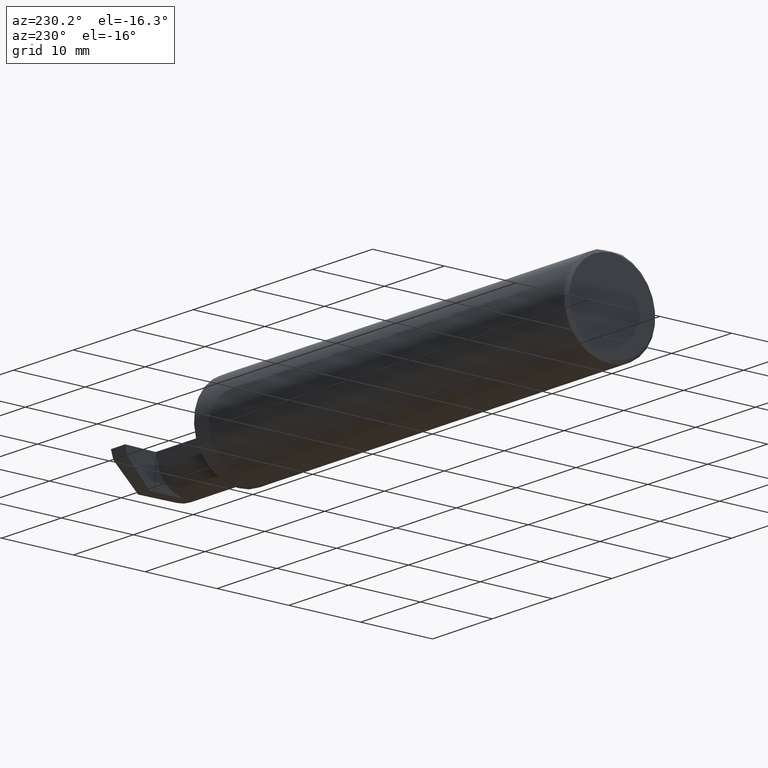
[diagram: clean part render]
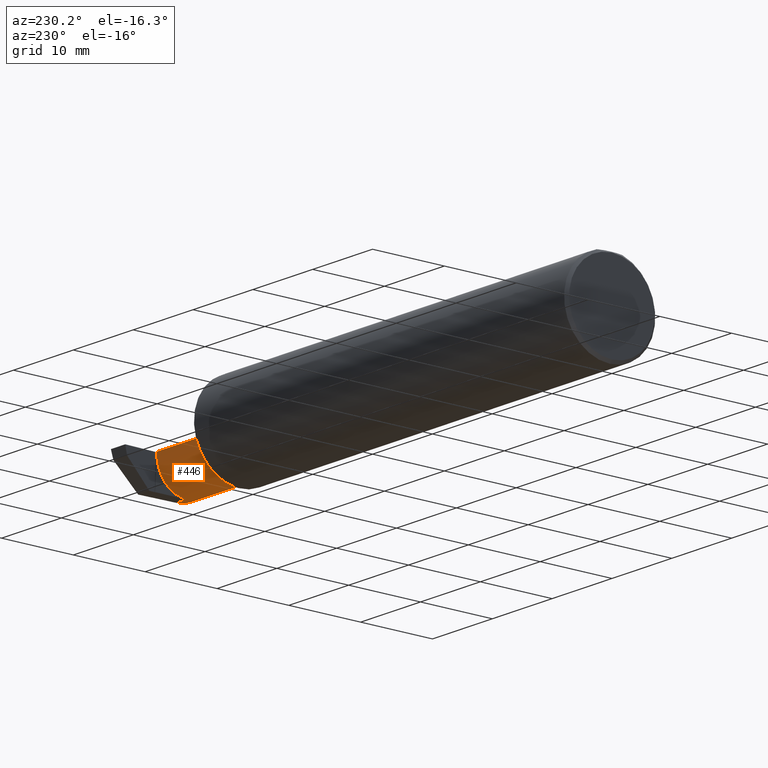
[diagram: same view with one face highlighted and labeled with its STEP entity id]
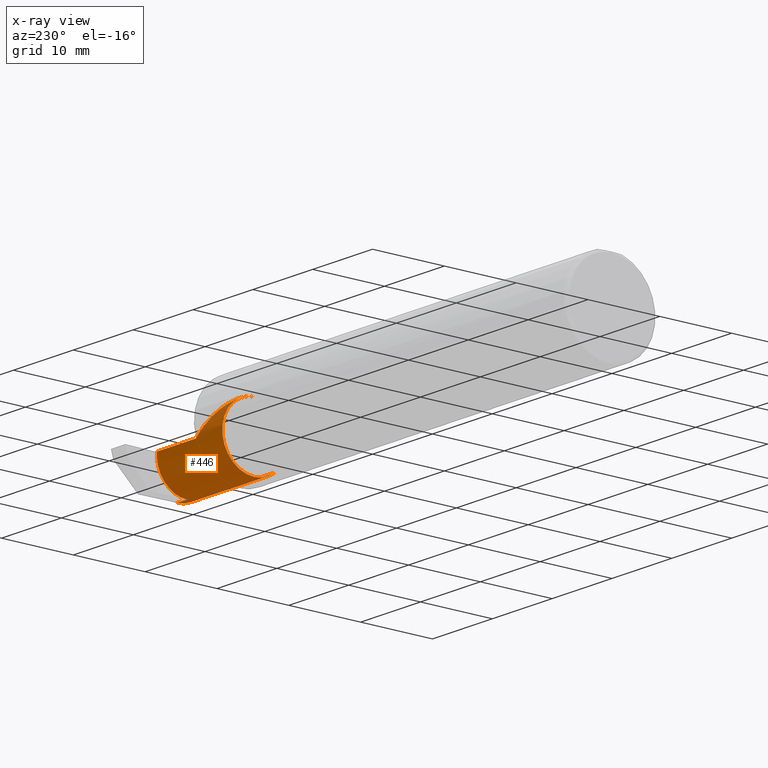
[diagram: x-ray of the same camera — body ghosted, the highlighted face saturated]
A machine part, auxiliary view. The second image highlights one B-rep face of the part: STEP entity #446.
The next image is the same camera in x-ray: the body ghosted, the highlighted face saturated — about 4% of this face is hidden behind the body in this view.
In plain terms, the highlighted cylindrical surface (partial cylindrical patch) has radius 4.445 mm, axis along (-1, -0, -0).
Its self-contained STEP definition (entity closure, byte-faithful):
#31 = CARTESIAN_POINT ( 'NONE',  ( 2.475000000000000089, -0.2080850024789291375, -0.1382955322609665805 ) ) ;
#34 =( BOUNDED_CURVE ( )  B_SPLINE_CURVE ( 3, ( #483, #363, #225, #432 ),
 .UNSPECIFIED., .F., .T. ) 
 B_SPLINE_CURVE_WITH_KNOTS ( ( 4, 4 ),
 ( 4.443983221546778495, 4.709965478757016655 ),
 .UNSPECIFIED. ) 
 CURVE ( )  GEOMETRIC_REPRESENTATION_ITEM ( )  RATIONAL_B_SPLINE_CURVE ( ( 1.000000000000000000, 0.9941131374841131185, 0.9941131374841131185, 1.000000000000000000 ) ) 
 REPRESENTATION_ITEM ( '' )  );
#41 = VERTEX_POINT ( 'NONE', #406 ) ;
#50 = CARTESIAN_POINT ( 'NONE',  ( 2.450000000000000178, 0.07414999999999997982, 6.735557395310432655E-17 ) ) ;
#55 = CARTESIAN_POINT ( 'NONE',  ( 2.981893741990786495, -0.1400387324517231025, -0.1750000000000000167 ) ) ;
#60 = AXIS2_PLACEMENT_3D ( 'NONE', #457, #411, #579 ) ;
#91 = CARTESIAN_POINT ( 'NONE',  ( 2.650000000000000355, 0.07414999999999997982, 4.286263797015727350E-17 ) ) ;
#111 = DIRECTION ( 'NONE',  ( 0.000000000000000000, 0.000000000000000000, 1.000000000000000000 ) ) ;
#113 = VERTEX_POINT ( 'NONE', #464 ) ;
#114 = DIRECTION ( 'NONE',  ( 1.000000000000000000, 0.000000000000000000, 0.000000000000000000 ) ) ;
#126 = LINE ( 'NONE', #50, #212 ) ;
#135 = CARTESIAN_POINT ( 'NONE',  ( 2.917029432995152050, -0.1008500000000000091, -0.1749999999999999889 ) ) ;
#138 = DIRECTION ( 'NONE',  ( -1.000000000000000000, -0.000000000000000000, -0.000000000000000000 ) ) ;
#148 = ORIENTED_EDGE ( 'NONE', *, *, #414, .T. ) ;
#153 = ORIENTED_EDGE ( 'NONE', *, *, #762, .F. ) ;
#161 = DIRECTION ( 'NONE',  ( -1.000000000000000000, -0.000000000000000000, -0.000000000000000000 ) ) ;
#194 = CARTESIAN_POINT ( 'NONE',  ( 2.650000000000000355, 0.07414999999999997982, 4.286263797015727350E-17 ) ) ;
#207 = CARTESIAN_POINT ( 'NONE',  ( 2.906000000000000139, -0.1008499999999999674, 0.000000000000000000 ) ) ;
#208 = AXIS2_PLACEMENT_3D ( 'NONE', #207, #138, #590 ) ;
#210 = ORIENTED_EDGE ( 'NONE', *, *, #675, .F. ) ;
#212 = VECTOR ( 'NONE', #114, 39.37007874015748143 ) ;
#219 = EDGE_LOOP ( 'NONE', ( #369, #641, #210, #396, #477, #683, #148, #662, #751, #153 ) ) ;
#225 = CARTESIAN_POINT ( 'NONE',  ( 2.906689495973013404, 0.07413112468343002748, -0.01577237022675150729 ) ) ;
#230 = VERTEX_POINT ( 'NONE', #31 ) ;
#245 = DIRECTION ( 'NONE',  ( 0.000000000000000000, 0.000000000000000000, 1.000000000000000000 ) ) ;
#261 = CARTESIAN_POINT ( 'NONE',  ( 2.913564601548836563, 0.04629714416892562884, -0.1252712066320194051 ) ) ;
#265 = CARTESIAN_POINT ( 'NONE',  ( 2.917036419112081891, -0.01887343476265498227, -0.1750000000000000444 ) ) ;
#267 = EDGE_CURVE ( 'NONE', #41, #230, #485, .T. ) ;
#292 = CARTESIAN_POINT ( 'NONE',  ( 2.690500000000000114, -0.2080850024789291652, -0.1382955322609665250 ) ) ;
#293 = VERTEX_POINT ( 'NONE', #573 ) ;
#294 = EDGE_CURVE ( 'NONE', #41, #293, #354, .T. ) ;
#312 = DIRECTION ( 'NONE',  ( -1.000000000000000000, -0.000000000000000000, -0.000000000000000000 ) ) ;
#335 = AXIS2_PLACEMENT_3D ( 'NONE', #610, #161, #111 ) ;
#346 = CIRCLE ( 'NONE', #208, 0.1749999999999999889 ) ;
#348 = VERTEX_POINT ( 'NONE', #442 ) ;
#352 = VERTEX_POINT ( 'NONE', #693 ) ;
#354 =( BOUNDED_CURVE ( )  B_SPLINE_CURVE ( 3, ( #696, #445, #55, #823 ),
 .UNSPECIFIED., .F., .T. ) 
 B_SPLINE_CURVE_WITH_KNOTS ( ( 4, 4 ),
 ( 0.2675252011803429530, 0.9270880441442505004 ),
 .UNSPECIFIED. ) 
 CURVE ( )  GEOMETRIC_REPRESENTATION_ITEM ( )  RATIONAL_B_SPLINE_CURVE ( ( 1.000000000000000000, 0.9640754331822828371, 0.9640754331822828371, 1.000000000000000000 ) ) 
 REPRESENTATION_ITEM ( '' )  );
#363 = CARTESIAN_POINT ( 'NONE',  ( 2.907372681961405636, 0.07204909126152565790, -0.03119400421533637113 ) ) ;
#369 = ORIENTED_EDGE ( 'NONE', *, *, #294, .F. ) ;
#374 = LINE ( 'NONE', #821, #403 ) ;
#378 = CARTESIAN_POINT ( 'NONE',  ( 2.475000000000000977, -0.1008499999999999674, 0.1749999999999999889 ) ) ;
#391 = VERTEX_POINT ( 'NONE', #753 ) ;
#396 = ORIENTED_EDGE ( 'NONE', *, *, #718, .F. ) ;
#403 = VECTOR ( 'NONE', #508, 39.37007874015748143 ) ;
#406 = CARTESIAN_POINT ( 'NONE',  ( 2.980479240051444378, -0.2080850024789291652, -0.1382955322609665250 ) ) ;
#411 = DIRECTION ( 'NONE',  ( -1.000000000000000000, -0.000000000000000000, -0.000000000000000000 ) ) ;
#414 = EDGE_CURVE ( 'NONE', #348, #391, #346, .T. ) ;
#417 = VERTEX_POINT ( 'NONE', #531 ) ;
#422 = EDGE_CURVE ( 'NONE', #754, #113, #439, .T. ) ;
#432 = CARTESIAN_POINT ( 'NONE',  ( 2.906000000000000139, 0.07414987299205413884, -0.0002108382441793291845 ) ) ;
#439 =( BOUNDED_CURVE ( )  B_SPLINE_CURVE ( 3, ( #135, #265, #261, #593 ),
 .UNSPECIFIED., .F., .T. ) 
 B_SPLINE_CURVE_WITH_KNOTS ( ( 4, 4 ),
 ( 3.140373936913444908, 4.443983221546777607 ),
 .UNSPECIFIED. ) 
 CURVE ( )  GEOMETRIC_REPRESENTATION_ITEM ( )  RATIONAL_B_SPLINE_CURVE ( ( 1.000000000000000000, 0.8633269052189371795, 0.8633269052189371795, 1.000000000000000000 ) ) 
 REPRESENTATION_ITEM ( '' )  );
#441 = CIRCLE ( 'NONE', #780, 0.1749999999999999889 ) ;
#442 = CARTESIAN_POINT ( 'NONE',  ( 2.906000000000000139, 0.07414999999999999369, 6.735575451811503370E-17 ) ) ;
#445 = CARTESIAN_POINT ( 'NONE',  ( 2.980931506555613453, -0.1771157075472509779, -0.1623092683844330475 ) ) ;
#446 = ADVANCED_FACE ( 'NONE', ( #663 ), #783, .T. ) ;
#457 = CARTESIAN_POINT ( 'NONE',  ( 2.450000000000000178, -0.1008499999999999674, 0.000000000000000000 ) ) ;
#464 = CARTESIAN_POINT ( 'NONE',  ( 2.908037492458067863, 0.06794054266098323303, -0.04620338416404774079 ) ) ;
#477 = ORIENTED_EDGE ( 'NONE', *, *, #785, .T. ) ;
#483 = CARTESIAN_POINT ( 'NONE',  ( 2.908037492458067863, 0.06794054266098323303, -0.04620338416404774079 ) ) ;
#485 = LINE ( 'NONE', #292, #667 ) ;
#508 = DIRECTION ( 'NONE',  ( -1.000000000000000000, -0.000000000000000000, -0.000000000000000000 ) ) ;
#531 = CARTESIAN_POINT ( 'NONE',  ( 2.475000000000000977, -0.1008499999999999674, 0.1749999999999999889 ) ) ;
#546 = CIRCLE ( 'NONE', #335, 0.1749999999999999889 ) ;
#550 =( BOUNDED_CURVE ( )  B_SPLINE_CURVE ( 3, ( #378, #756, #765, #194 ),
 .UNSPECIFIED., .F., .T. ) 
 B_SPLINE_CURVE_WITH_KNOTS ( ( 4, 4 ),
 ( 0.000000000000000000, 1.570796326794896558 ),
 .UNSPECIFIED. ) 
 CURVE ( )  GEOMETRIC_REPRESENTATION_ITEM ( )  RATIONAL_B_SPLINE_CURVE ( ( 1.000000000000000000, 0.8047378541243649375, 0.8047378541243649375, 1.000000000000000000 ) ) 
 REPRESENTATION_ITEM ( '' )  );
#572 = CARTESIAN_POINT ( 'NONE',  ( 2.917029432995152050, -0.1008500000000000091, -0.1749999999999999889 ) ) ;
#573 = CARTESIAN_POINT ( 'NONE',  ( 2.983262242683407006, -0.1008499999999999674, -0.1749999999999999889 ) ) ;
#574 = VERTEX_POINT ( 'NONE', #91 ) ;
#579 = DIRECTION ( 'NONE',  ( 0.000000000000000000, 0.000000000000000000, 1.000000000000000000 ) ) ;
#590 = DIRECTION ( 'NONE',  ( 0.000000000000000000, 0.000000000000000000, 1.000000000000000000 ) ) ;
#593 = CARTESIAN_POINT ( 'NONE',  ( 2.908037492458067863, 0.06794054266098323303, -0.04620338416404774079 ) ) ;
#610 = CARTESIAN_POINT ( 'NONE',  ( 2.475000000000000089, -0.1008499999999999674, 0.000000000000000000 ) ) ;
#641 = ORIENTED_EDGE ( 'NONE', *, *, #267, .T. ) ;
#662 = ORIENTED_EDGE ( 'NONE', *, *, #673, .F. ) ;
#663 = FACE_OUTER_BOUND ( 'NONE', #219, .T. ) ;
#667 = VECTOR ( 'NONE', #797, 39.37007874015748143 ) ;
#673 = EDGE_CURVE ( 'NONE', #113, #391, #34, .T. ) ;
#675 = EDGE_CURVE ( 'NONE', #352, #230, #546, .T. ) ;
#683 = ORIENTED_EDGE ( 'NONE', *, *, #757, .T. ) ;
#693 = CARTESIAN_POINT ( 'NONE',  ( 2.475000000000000089, -0.1008499999999999536, -0.1749999999999999889 ) ) ;
#695 = CARTESIAN_POINT ( 'NONE',  ( 2.475000000000000089, -0.1008499999999999674, 0.000000000000000000 ) ) ;
#696 = CARTESIAN_POINT ( 'NONE',  ( 2.980479240051444378, -0.2080850024789291652, -0.1382955322609665250 ) ) ;
#718 = EDGE_CURVE ( 'NONE', #417, #352, #441, .T. ) ;
#751 = ORIENTED_EDGE ( 'NONE', *, *, #422, .F. ) ;
#753 = CARTESIAN_POINT ( 'NONE',  ( 2.906000000000000139, 0.07414987299205413884, -0.0002108382441793291845 ) ) ;
#754 = VERTEX_POINT ( 'NONE', #572 ) ;
#756 = CARTESIAN_POINT ( 'NONE',  ( 2.475000000000001421, 0.001662626584708371512, 0.1749999999999999889 ) ) ;
#757 = EDGE_CURVE ( 'NONE', #574, #348, #126, .T. ) ;
#762 = EDGE_CURVE ( 'NONE', #293, #754, #374, .T. ) ;
#765 = CARTESIAN_POINT ( 'NONE',  ( 2.547487373415292744, 0.07414999999999996594, 0.1025126265847083745 ) ) ;
#780 = AXIS2_PLACEMENT_3D ( 'NONE', #695, #312, #245 ) ;
#783 = CYLINDRICAL_SURFACE ( 'NONE', #60, 0.1749999999999999889 ) ;
#785 = EDGE_CURVE ( 'NONE', #417, #574, #550, .T. ) ;
#797 = DIRECTION ( 'NONE',  ( -1.000000000000000000, -0.000000000000000000, -0.000000000000000000 ) ) ;
#821 = CARTESIAN_POINT ( 'NONE',  ( 3.000000000000000444, -0.1008499999999999813, -0.1749999999999999889 ) ) ;
#823 = CARTESIAN_POINT ( 'NONE',  ( 2.983262242683407006, -0.1008499999999999674, -0.1749999999999999889 ) ) ;